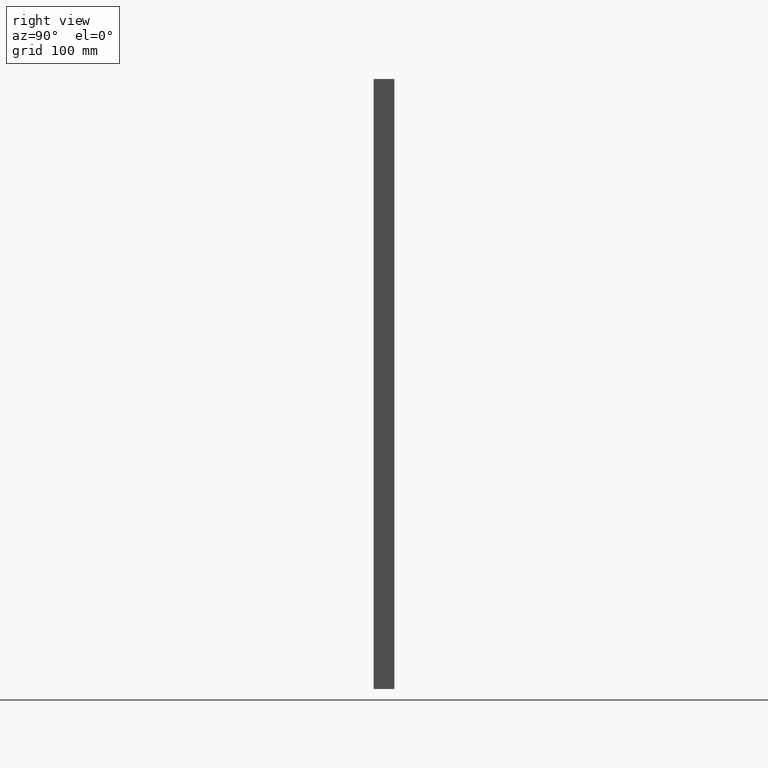
[diagram: clean part render]
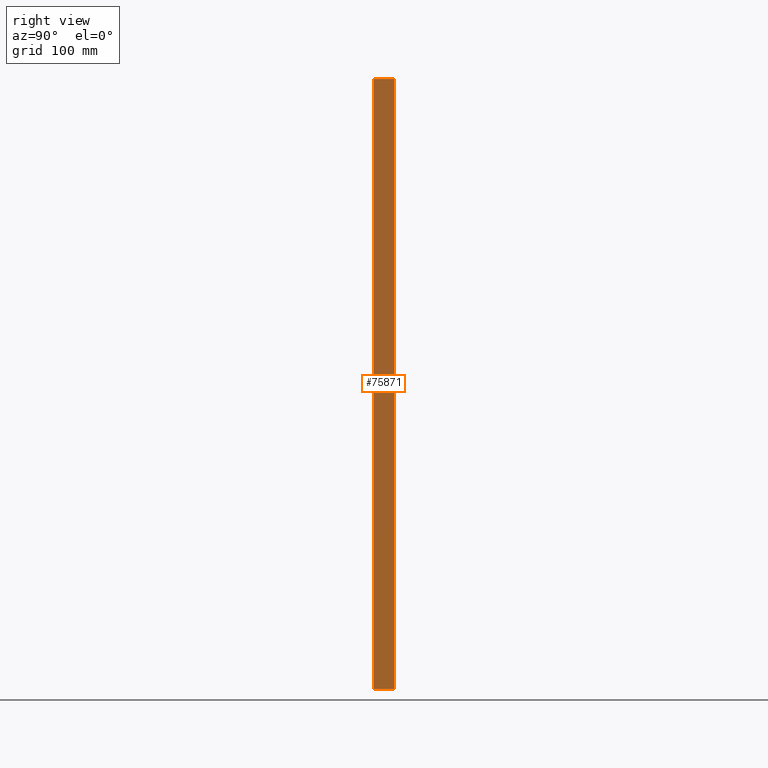
[diagram: same view with one face highlighted and labeled with its STEP entity id]
A machine part, right view. The second image highlights one B-rep face of the part: STEP entity #75871.
In plain terms, the highlighted planar face has unit normal (1, -0, -0).
Its self-contained STEP definition (entity closure, byte-faithful):
#464 = CARTESIAN_POINT ( 'NONE',  ( 389.9999999999998900, -10.00000000000000000, -590.0000000000000000 ) ) ;
#4561 = DIRECTION ( 'NONE',  ( 3.061616997868382600E-016, 1.000000000000000000, -3.061616997868382600E-016 ) ) ;
#5304 = EDGE_CURVE ( 'NONE', #92794, #33692, #61272, .T. ) ;
#6719 = ORIENTED_EDGE ( 'NONE', *, *, #29265, .T. ) ;
#10135 = VECTOR ( 'NONE', #82573, 1000.000000000000000 ) ;
#12634 = DIRECTION ( 'NONE',  ( 3.061616997868383100E-016, 1.000000000000000000, 0.0000000000000000000 ) ) ;
#16310 = AXIS2_PLACEMENT_3D ( 'NONE', #21049, #56932, #12634 ) ;
#18346 = CARTESIAN_POINT ( 'NONE',  ( 389.9999999999999400, 10.00000000000000200, -590.0000000000000000 ) ) ;
#21049 = CARTESIAN_POINT ( 'NONE',  ( 390.0000000000000000, 9.999999999999895200, -590.0000000000000000 ) ) ;
#21683 = VERTEX_POINT ( 'NONE', #49776 ) ;
#21942 = VECTOR ( 'NONE', #74041, 1000.000000000000000 ) ;
#27356 = EDGE_LOOP ( 'NONE', ( #6719, #87983, #85813, #75562 ) ) ;
#29265 = EDGE_CURVE ( 'NONE', #46756, #92794, #91647, .T. ) ;
#31930 = CARTESIAN_POINT ( 'NONE',  ( 389.9999999999998900, -10.00000000000000000, -2.220446049250313100E-013 ) ) ;
#33692 = VERTEX_POINT ( 'NONE', #31930 ) ;
#35151 = LINE ( 'NONE', #41418, #89586 ) ;
#41418 = CARTESIAN_POINT ( 'NONE',  ( 390.0000000000000000, 9.999999999999895200, -590.0000000000000000 ) ) ;
#42716 = EDGE_CURVE ( 'NONE', #21683, #33692, #86576, .T. ) ;
#46756 = VERTEX_POINT ( 'NONE', #52782 ) ;
#48735 = CARTESIAN_POINT ( 'NONE',  ( 390.0000000000000600, 10.00000000000000200, 5.551115123125782700E-014 ) ) ;
#49776 = CARTESIAN_POINT ( 'NONE',  ( 389.9999999999998900, -10.00000000000000000, -590.0000000000000000 ) ) ;
#52782 = CARTESIAN_POINT ( 'NONE',  ( 389.9999999999999400, 10.00000000000000200, -590.0000000000000000 ) ) ;
#54163 = EDGE_CURVE ( 'NONE', #21683, #46756, #35151, .T. ) ;
#54762 = FACE_OUTER_BOUND ( 'NONE', #27356, .T. ) ;
#56932 = DIRECTION ( 'NONE',  ( 1.000000000000000000, -3.061616997868383100E-016, -9.408669700213191800E-017 ) ) ;
#61272 = LINE ( 'NONE', #89251, #21942 ) ;
#71947 = VECTOR ( 'NONE', #85061, 1000.000000000000000 ) ;
#74041 = DIRECTION ( 'NONE',  ( -3.061616997868383600E-016, -1.000000000000000000, -3.061616997868382600E-016 ) ) ;
#75562 = ORIENTED_EDGE ( 'NONE', *, *, #54163, .T. ) ;
#75871 = ADVANCED_FACE ( 'NONE', ( #54762 ), #94128, .T. ) ;
#82573 = DIRECTION ( 'NONE',  ( 9.408669700213191800E-017, 0.0000000000000000000, 1.000000000000000000 ) ) ;
#85061 = DIRECTION ( 'NONE',  ( 9.408669700213191800E-017, 0.0000000000000000000, 1.000000000000000000 ) ) ;
#85813 = ORIENTED_EDGE ( 'NONE', *, *, #42716, .F. ) ;
#86576 = LINE ( 'NONE', #464, #10135 ) ;
#87983 = ORIENTED_EDGE ( 'NONE', *, *, #5304, .T. ) ;
#89251 = CARTESIAN_POINT ( 'NONE',  ( 390.0000000000000600, 9.999999999999714000, 1.110223024625156500E-013 ) ) ;
#89586 = VECTOR ( 'NONE', #4561, 1000.000000000000000 ) ;
#91647 = LINE ( 'NONE', #18346, #71947 ) ;
#92794 = VERTEX_POINT ( 'NONE', #48735 ) ;
#94128 = PLANE ( 'NONE',  #16310 ) ;